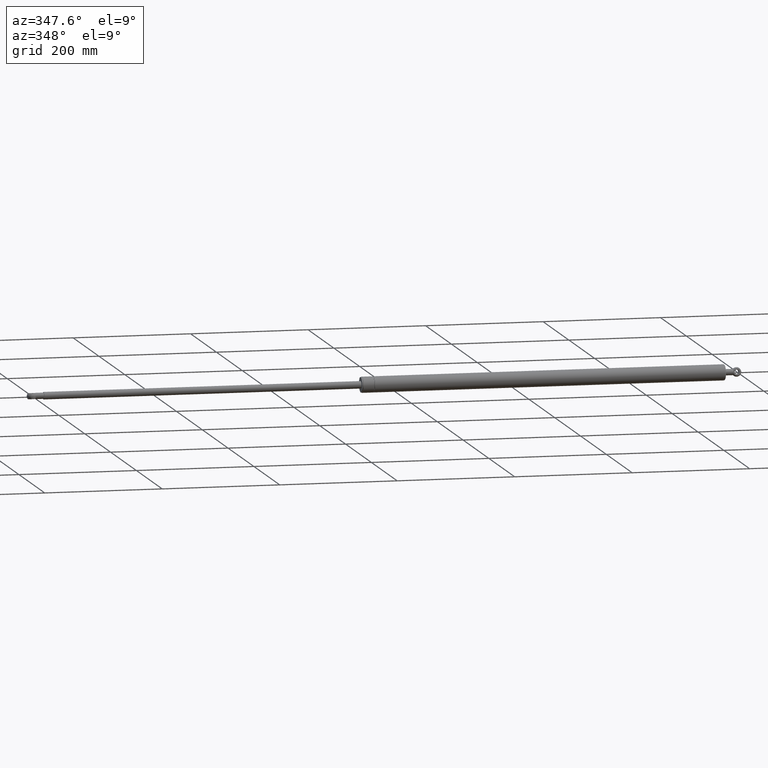
[diagram: clean part render]
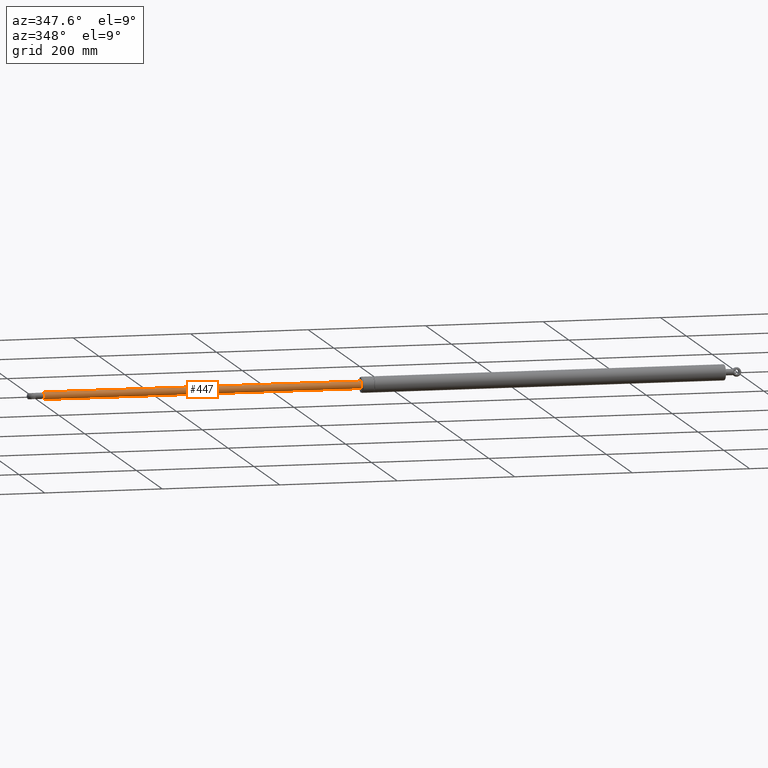
[diagram: same view with one face highlighted and labeled with its STEP entity id]
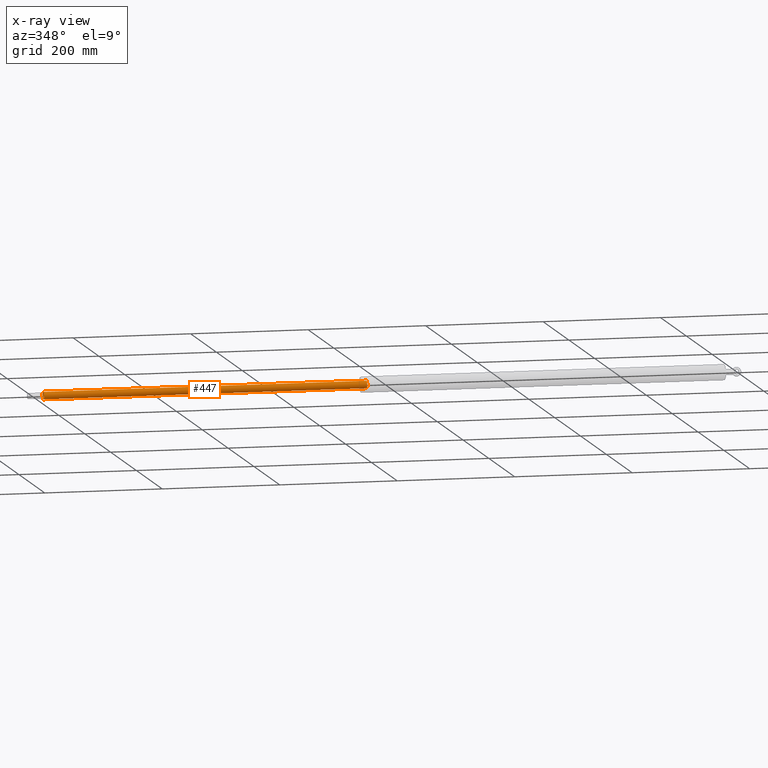
[diagram: x-ray of the same camera — body ghosted, the highlighted face saturated]
A machine part, auxiliary view. The second image highlights one B-rep face of the part: STEP entity #447.
The next image is the same camera in x-ray: the body ghosted, the highlighted face saturated — about 0% of this face is hidden behind the body in this view.
In plain terms, the highlighted cylindrical surface (bore or boss wall) has radius 6.25 mm, axis along (-1, 0, -0).
Its self-contained STEP definition (entity closure, byte-faithful):
#96=FACE_BOUND('',#210,.T.);
#116=CYLINDRICAL_SURFACE('',#522,6.2500000000001);
#149=FACE_OUTER_BOUND('',#209,.T.);
#209=EDGE_LOOP('',(#398));
#210=EDGE_LOOP('',(#399));
#253=CIRCLE('',#518,6.25);
#255=CIRCLE('',#523,6.2500000000002);
#288=VERTEX_POINT('',#811);
#290=VERTEX_POINT('',#818);
#327=EDGE_CURVE('',#288,#288,#253,.T.);
#329=EDGE_CURVE('',#290,#290,#255,.T.);
#398=ORIENTED_EDGE('',*,*,#329,.F.);
#399=ORIENTED_EDGE('',*,*,#327,.T.);
#447=ADVANCED_FACE('',(#149,#96),#116,.T.);
#518=AXIS2_PLACEMENT_3D('',#812,#662,#663);
#522=AXIS2_PLACEMENT_3D('',#817,#670,#671);
#523=AXIS2_PLACEMENT_3D('',#819,#672,#673);
#662=DIRECTION('center_axis',(-1.,0.,0.));
#663=DIRECTION('ref_axis',(0.,0.,1.));
#670=DIRECTION('center_axis',(-1.,0.,0.));
#671=DIRECTION('ref_axis',(0.,0.,1.));
#672=DIRECTION('center_axis',(-1.,0.,0.));
#673=DIRECTION('ref_axis',(0.,0.,1.));
#811=CARTESIAN_POINT('',(550.,0.,6.25));
#812=CARTESIAN_POINT('Origin',(550.,0.,0.));
#817=CARTESIAN_POINT('Origin',(275.,0.,0.));
#818=CARTESIAN_POINT('',(-1.02694775884132E-31,0.,6.2500000000002));
#819=CARTESIAN_POINT('Origin',(0.,0.,0.));